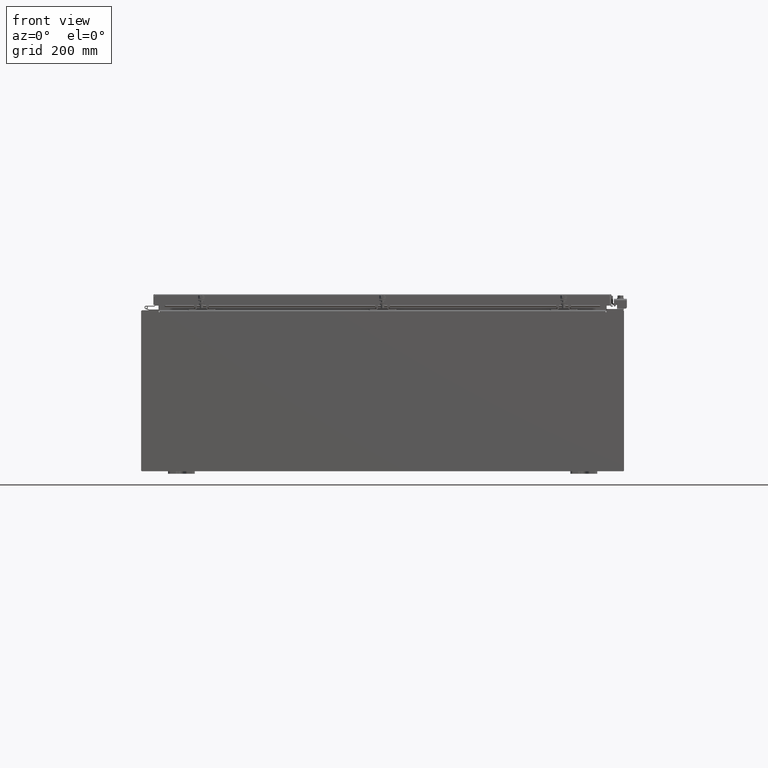
[diagram: clean part render]
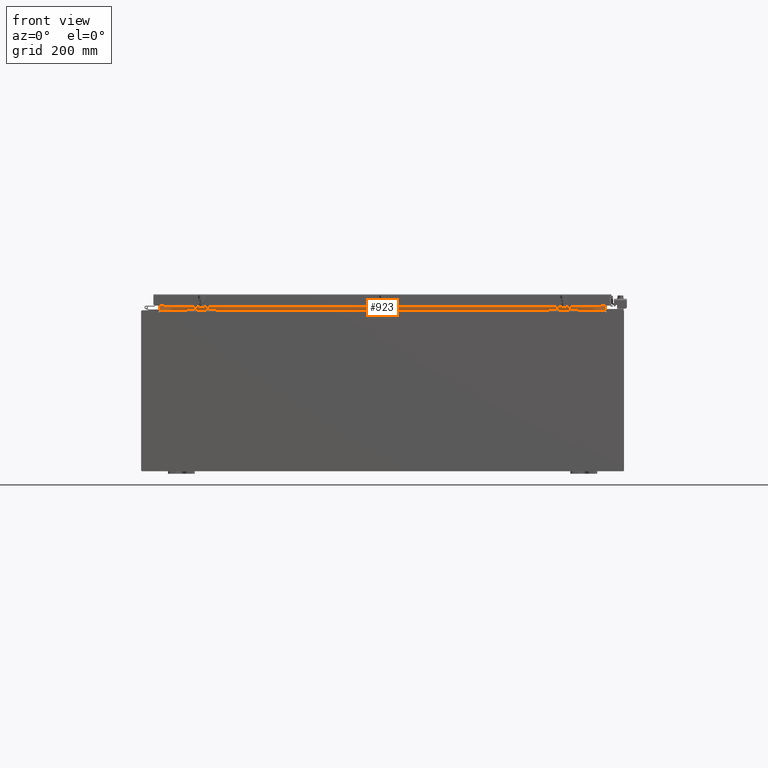
[diagram: same view with one face highlighted and labeled with its STEP entity id]
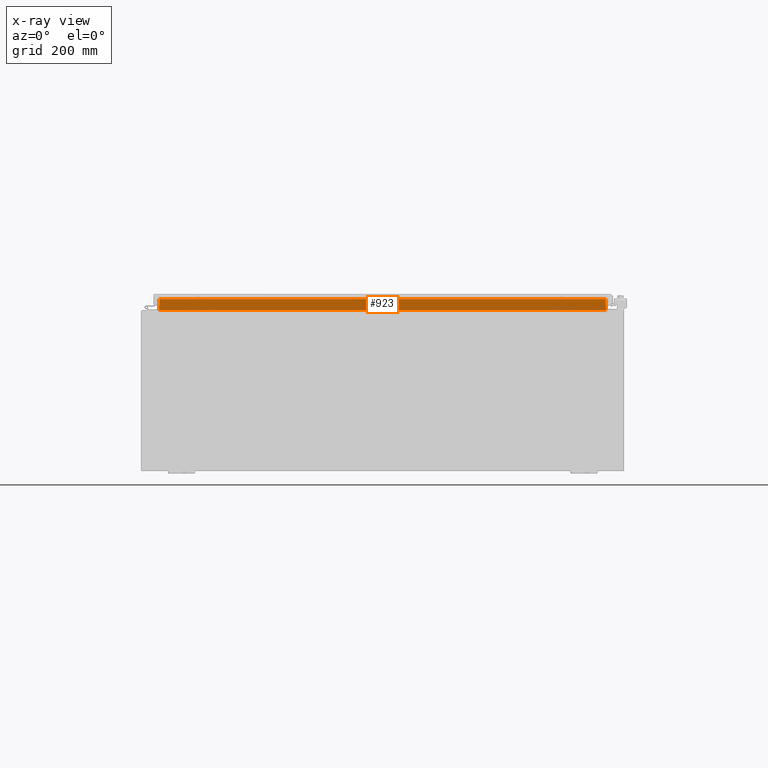
[diagram: x-ray of the same camera — body ghosted, the highlighted face saturated]
A machine part, front view. The second image highlights one B-rep face of the part: STEP entity #923.
The next image is the same camera in x-ray: the body ghosted, the highlighted face saturated — about 0% of this face is hidden behind the body in this view.
In plain terms, the highlighted planar face has unit normal (0, -1, 0).
Its self-contained STEP definition (entity closure, byte-faithful):
#527 = ORIENTED_EDGE ( 'NONE', *, *, #12899, .F. ) ;
#686 = DIRECTION ( 'NONE',  ( -0.0000000000000000000, 8.857174949738235100E-016, -1.000000000000000000 ) ) ;
#923 = ADVANCED_FACE ( 'NONE', ( #29660 ), #14748, .T. ) ;
#4050 = EDGE_CURVE ( 'NONE', #29036, #26728, #27696, .T. ) ;
#6044 = LINE ( 'NONE', #10662, #32679 ) ;
#7598 = CARTESIAN_POINT ( 'NONE',  ( -16.63719999999999600, -1.300299999999999800, 6.013000000000001700 ) ) ;
#10249 = AXIS2_PLACEMENT_3D ( 'NONE', #14583, #14544, #14487 ) ;
#10617 = DIRECTION ( 'NONE',  ( -0.0000000000000000000, -8.857174949738235100E-016, 1.000000000000000000 ) ) ;
#10662 = CARTESIAN_POINT ( 'NONE',  ( 16.63720000000000400, -1.300300000000000700, 6.925300000000003600 ) ) ;
#12546 = LINE ( 'NONE', #7598, #20743 ) ;
#12899 = EDGE_CURVE ( 'NONE', #16202, #29036, #6044, .T. ) ;
#13641 = ORIENTED_EDGE ( 'NONE', *, *, #38683, .F. ) ;
#14487 = DIRECTION ( 'NONE',  ( 0.0000000000000000000, -8.857174949738235100E-016, 1.000000000000000000 ) ) ;
#14544 = DIRECTION ( 'NONE',  ( -2.908717286078879800E-032, 1.000000000000000000, 8.857174949738235100E-016 ) ) ;
#14583 = CARTESIAN_POINT ( 'NONE',  ( 3.782205087088351500E-032, -1.300299999999994700, -1.151698458714458100E-015 ) ) ;
#14748 = PLANE ( 'NONE',  #10249 ) ;
#15804 = CARTESIAN_POINT ( 'NONE',  ( 16.63720000000000400, -1.300299999999999800, 6.013000000000001700 ) ) ;
#16174 = CARTESIAN_POINT ( 'NONE',  ( 16.63720000000000400, -1.300300000000000700, 6.837600000000003700 ) ) ;
#16202 = VERTEX_POINT ( 'NONE', #15804 ) ;
#17335 = VECTOR ( 'NONE', #28101, 39.37007874015748100 ) ;
#17905 = VECTOR ( 'NONE', #686, 39.37007874015748100 ) ;
#18881 = CARTESIAN_POINT ( 'NONE',  ( -16.63720000000000000, -1.300299999999999800, 6.013000000000001700 ) ) ;
#20367 = CARTESIAN_POINT ( 'NONE',  ( -16.63719999999998900, -1.300299999999999800, 6.837600000000003700 ) ) ;
#20743 = VECTOR ( 'NONE', #35313, 39.37007874015748100 ) ;
#26728 = VERTEX_POINT ( 'NONE', #20367 ) ;
#27696 = LINE ( 'NONE', #28966, #17335 ) ;
#28101 = DIRECTION ( 'NONE',  ( -1.000000000000000000, -0.0000000000000000000, -0.0000000000000000000 ) ) ;
#28966 = CARTESIAN_POINT ( 'NONE',  ( 16.63719999999999600, -1.300299999999999800, 6.837600000000003700 ) ) ;
#29036 = VERTEX_POINT ( 'NONE', #16174 ) ;
#29660 = FACE_OUTER_BOUND ( 'NONE', #29812, .T. ) ;
#29812 = EDGE_LOOP ( 'NONE', ( #13641, #42888, #527, #35641 ) ) ;
#32679 = VECTOR ( 'NONE', #10617, 39.37007874015748100 ) ;
#35313 = DIRECTION ( 'NONE',  ( 1.000000000000000000, 3.284023746380716800E-017, 0.0000000000000000000 ) ) ;
#35517 = CARTESIAN_POINT ( 'NONE',  ( -16.63719999999999600, -1.300299999999999800, 6.000000000000002700 ) ) ;
#35641 = ORIENTED_EDGE ( 'NONE', *, *, #37494, .F. ) ;
#37333 = LINE ( 'NONE', #35517, #17905 ) ;
#37494 = EDGE_CURVE ( 'NONE', #42064, #16202, #12546, .T. ) ;
#38683 = EDGE_CURVE ( 'NONE', #26728, #42064, #37333, .T. ) ;
#42064 = VERTEX_POINT ( 'NONE', #18881 ) ;
#42888 = ORIENTED_EDGE ( 'NONE', *, *, #4050, .F. ) ;